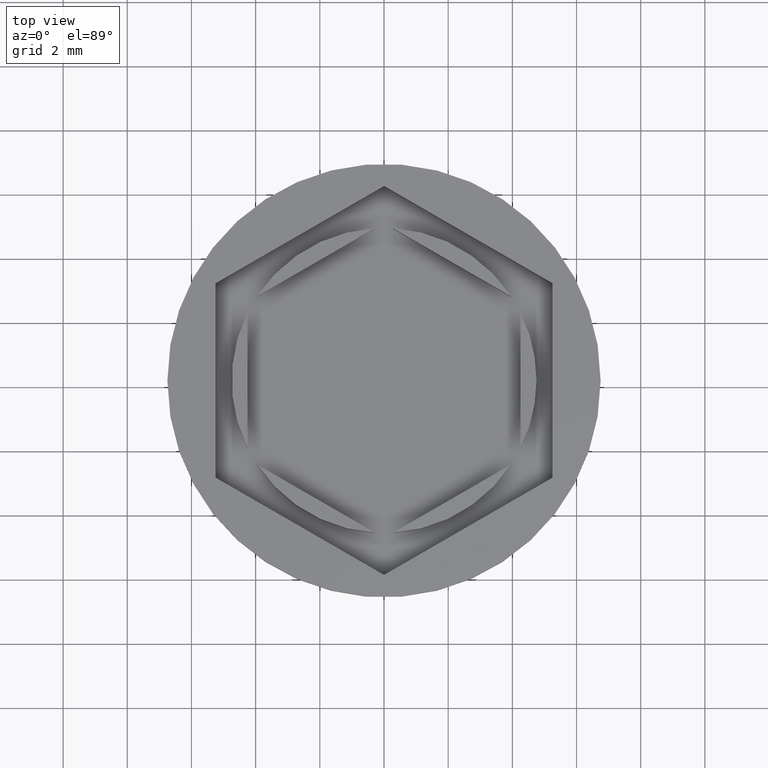
[diagram: clean part render]
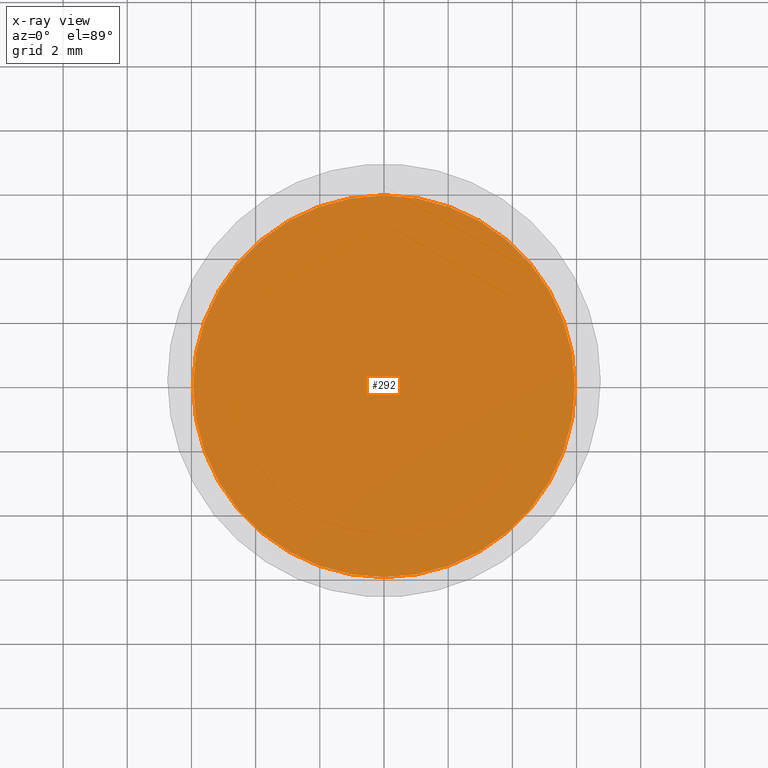
[diagram: x-ray — body ghosted, one internal face saturated and labeled with its STEP entity id]
A machine part, top view, then the same camera in x-ray: the body is ghosted and one INTERNAL B-rep face — a face not visible from any outside direction — is saturated and labeled: STEP entity #292.
In plain terms, the highlighted planar face has unit normal (0, 0, -1).
Its self-contained STEP definition (entity closure, byte-faithful):
#119 = CARTESIAN_POINT ( 'NONE',  ( -5.950000000000000178, 0.000000000000000000, -10.50000000000000000 ) ) ;
#205 = DIRECTION ( 'NONE',  ( -1.000000000000000000, 0.000000000000000000, 0.000000000000000000 ) ) ;
#233 = AXIS2_PLACEMENT_3D ( 'NONE', #652, #476, #205 ) ;
#285 = PLANE ( 'NONE',  #1905 ) ;
#292 = ADVANCED_FACE ( 'NONE', ( #1991 ), #285, .F. ) ;
#426 = DIRECTION ( 'NONE',  ( -1.000000000000000000, 0.000000000000000000, -0.000000000000000000 ) ) ;
#476 = DIRECTION ( 'NONE',  ( -0.000000000000000000, -0.000000000000000000, 1.000000000000000000 ) ) ;
#652 = CARTESIAN_POINT ( 'NONE',  ( 0.000000000000000000, 0.000000000000000000, -10.50000000000000000 ) ) ;
#711 = EDGE_CURVE ( 'NONE', #1620, #1230, #1709, .T. ) ;
#771 = EDGE_LOOP ( 'NONE', ( #1584, #1249 ) ) ;
#849 = DIRECTION ( 'NONE',  ( -0.000000000000000000, -0.000000000000000000, 1.000000000000000000 ) ) ;
#1090 = AXIS2_PLACEMENT_3D ( 'NONE', #1751, #849, #1312 ) ;
#1097 = CIRCLE ( 'NONE', #233, 5.950000000000000178 ) ;
#1203 = DIRECTION ( 'NONE',  ( 0.000000000000000000, 0.000000000000000000, -1.000000000000000000 ) ) ;
#1230 = VERTEX_POINT ( 'NONE', #1955 ) ;
#1249 = ORIENTED_EDGE ( 'NONE', *, *, #1577, .T. ) ;
#1312 = DIRECTION ( 'NONE',  ( -1.000000000000000000, 0.000000000000000000, 0.000000000000000000 ) ) ;
#1577 = EDGE_CURVE ( 'NONE', #1230, #1620, #1097, .T. ) ;
#1584 = ORIENTED_EDGE ( 'NONE', *, *, #711, .T. ) ;
#1620 = VERTEX_POINT ( 'NONE', #119 ) ;
#1709 = CIRCLE ( 'NONE', #1090, 5.950000000000000178 ) ;
#1751 = CARTESIAN_POINT ( 'NONE',  ( 0.000000000000000000, 0.000000000000000000, -10.50000000000000000 ) ) ;
#1850 = CARTESIAN_POINT ( 'NONE',  ( 0.000000000000000000, 0.000000000000000000, -10.50000000000000000 ) ) ;
#1905 = AXIS2_PLACEMENT_3D ( 'NONE', #1850, #1203, #426 ) ;
#1955 = CARTESIAN_POINT ( 'NONE',  ( 5.950000000000000178, 7.470345474798855279E-16, -10.50000000000000000 ) ) ;
#1991 = FACE_OUTER_BOUND ( 'NONE', #771, .T. ) ;